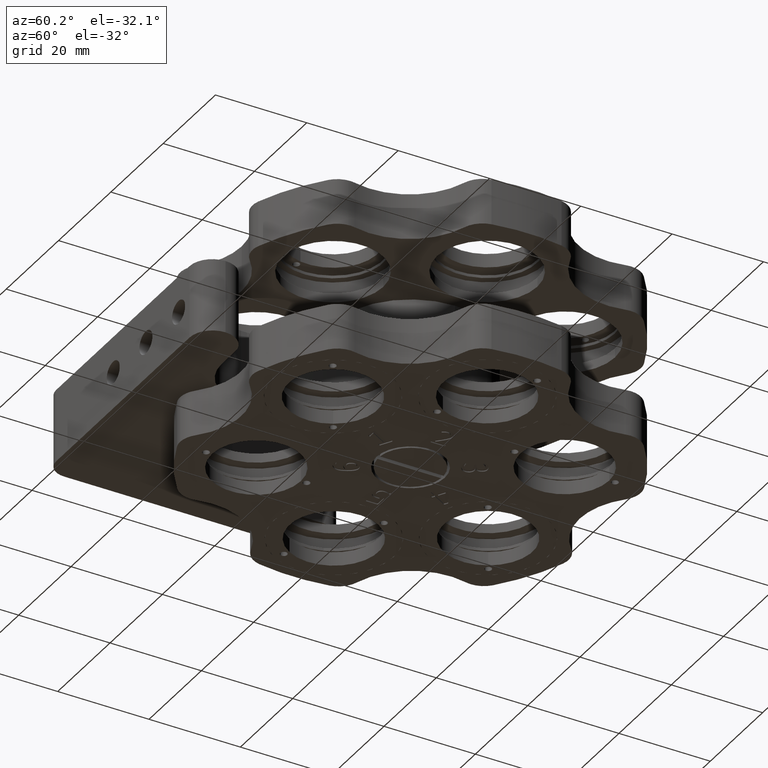
[diagram: clean part render]
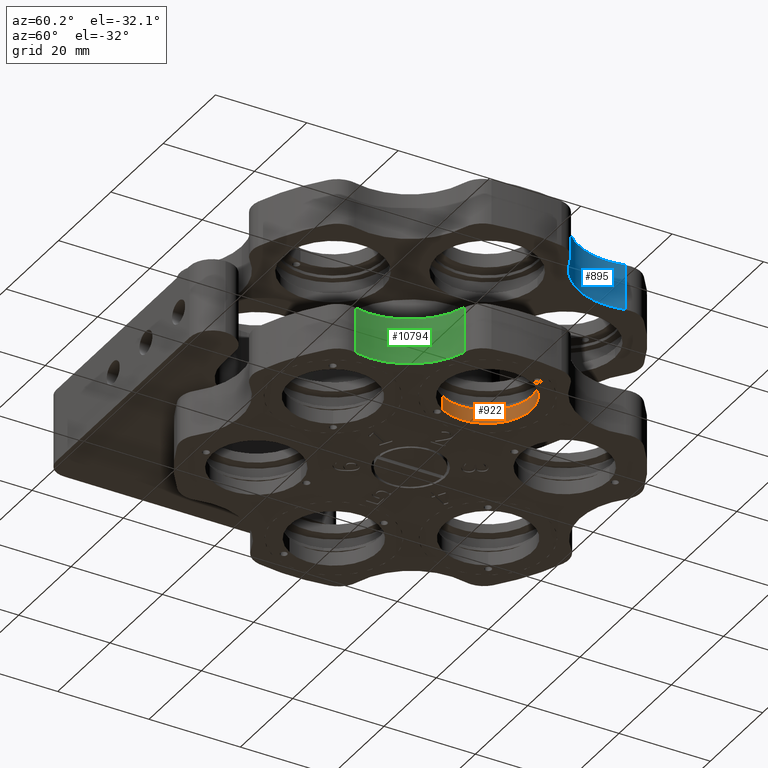
[diagram: same view with three faces highlighted in distinct colors, each labeled with its STEP entity id]
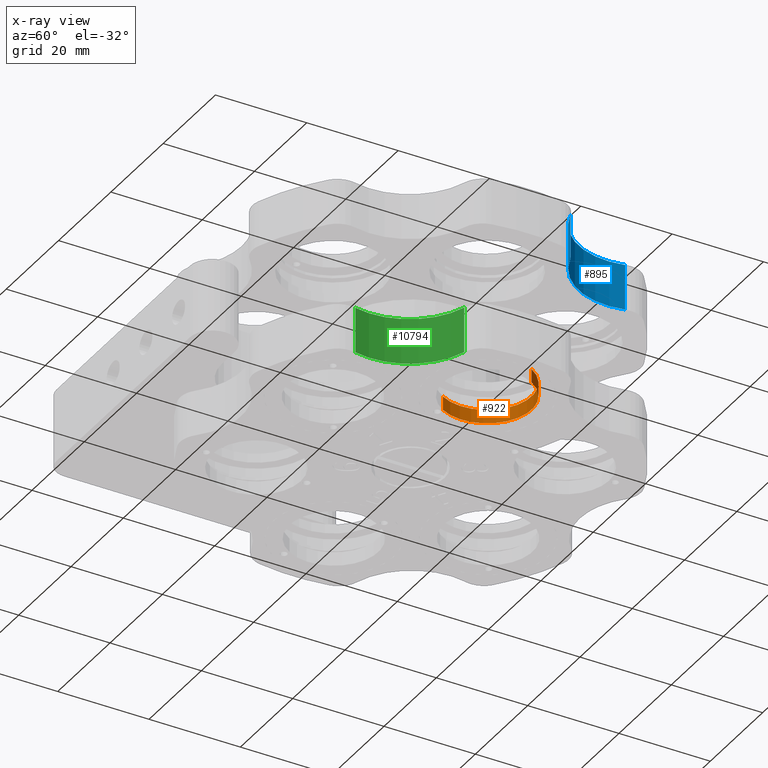
[diagram: x-ray of the same camera — body ghosted, the three highlighted faces saturated]
A machine part, auxiliary view with three faces highlighted in distinct colors.
The next image is the same camera in x-ray (body ghosted, the three faces saturated) — at least one of them is partly hidden behind the body in this view.
Their STEP definitions:

[orange] entity #922 — the highlighted cylindrical surface (partial cylindrical patch) has radius 9.75 mm, axis along (0, 0, 1).
#110 = DIRECTION ( 'NONE',  ( -1.060540212046022500E-016, -1.836909530733558700E-016, -1.000000000000000000 ) ) ;
#922 = ADVANCED_FACE ( 'NONE', ( #18519 ), #8671, .F. ) ;
#1078 = EDGE_CURVE ( 'NONE', #12391, #4183, #6092, .T. ) ;
#1122 = CARTESIAN_POINT ( 'NONE',  ( 20.86255197716672800, -4.875000000000829600, -24.00000000000000000 ) ) ;
#3502 = CIRCLE ( 'NONE', #6253, 9.750000000000000000 ) ;
#3625 = CARTESIAN_POINT ( 'NONE',  ( 20.86255197716672400, -4.875000000000830400, -27.00000000000000000 ) ) ;
#4074 = EDGE_LOOP ( 'NONE', ( #8932, #11191, #9882, #22594 ) ) ;
#4183 = VERTEX_POINT ( 'NONE', #1122 ) ;
#4471 = CARTESIAN_POINT ( 'NONE',  ( 29.30629966406505100, -9.070158632409203200E-013, -27.00000000000000400 ) ) ;
#6092 = LINE ( 'NONE', #3625, #20424 ) ;
#6253 = AXIS2_PLACEMENT_3D ( 'NONE', #4471, #110, #20593 ) ;
#7932 = CARTESIAN_POINT ( 'NONE',  ( 37.75004735096337100, 4.874999999999016800, -27.00000000000000700 ) ) ;
#8504 = DIRECTION ( 'NONE',  ( -0.8660254037844432600, -0.4999999999999921700, 3.558407130208835200E-016 ) ) ;
#8671 = CYLINDRICAL_SURFACE ( 'NONE', #13134, 9.750000000000000000 ) ;
#8675 = EDGE_CURVE ( 'NONE', #4183, #24024, #23476, .T. ) ;
#8932 = ORIENTED_EDGE ( 'NONE', *, *, #1078, .F. ) ;
#9718 = DIRECTION ( 'NONE',  ( 1.060540212046022500E-016, 1.836909530733558700E-016, 1.000000000000000000 ) ) ;
#9882 = ORIENTED_EDGE ( 'NONE', *, *, #26251, .T. ) ;
#10487 = DIRECTION ( 'NONE',  ( 1.060540212046022500E-016, 1.836909530733558700E-016, 1.000000000000000000 ) ) ;
#10593 = CARTESIAN_POINT ( 'NONE',  ( 20.86255197716672800, -4.875000000000829600, -27.00000000000000000 ) ) ;
#11191 = ORIENTED_EDGE ( 'NONE', *, *, #19227, .T. ) ;
#11472 = DIRECTION ( 'NONE',  ( 1.060540212046022500E-016, 1.836909530733558700E-016, 1.000000000000000000 ) ) ;
#11894 = LINE ( 'NONE', #7932, #25589 ) ;
#12180 = AXIS2_PLACEMENT_3D ( 'NONE', #12773, #20087, #8504 ) ;
#12391 = VERTEX_POINT ( 'NONE', #10593 ) ;
#12773 = CARTESIAN_POINT ( 'NONE',  ( 29.30629966406505100, -9.064647903817002500E-013, -24.00000000000000400 ) ) ;
#13134 = AXIS2_PLACEMENT_3D ( 'NONE', #17428, #11472, #23841 ) ;
#17428 = CARTESIAN_POINT ( 'NONE',  ( 29.30629966406505100, -9.070158632409203200E-013, -27.00000000000000400 ) ) ;
#18519 = FACE_OUTER_BOUND ( 'NONE', #4074, .T. ) ;
#19227 = EDGE_CURVE ( 'NONE', #12391, #24132, #3502, .T. ) ;
#20087 = DIRECTION ( 'NONE',  ( -1.060540212046022500E-016, -1.836909530733558700E-016, -1.000000000000000000 ) ) ;
#20396 = CARTESIAN_POINT ( 'NONE',  ( 37.75004735096337100, 4.874999999999018600, -24.00000000000000700 ) ) ;
#20424 = VECTOR ( 'NONE', #10487, 1000.000000000000000 ) ;
#20593 = DIRECTION ( 'NONE',  ( -0.8660254037844432600, -0.4999999999999921700, 3.558407130208835200E-016 ) ) ;
#20649 = CARTESIAN_POINT ( 'NONE',  ( 37.75004735096337100, 4.874999999999018600, -27.00000000000000700 ) ) ;
#22594 = ORIENTED_EDGE ( 'NONE', *, *, #8675, .F. ) ;
#23476 = CIRCLE ( 'NONE', #12180, 9.750000000000000000 ) ;
#23841 = DIRECTION ( 'NONE',  ( 0.8660254037844432600, 0.4999999999999921700, -3.558407130208835200E-016 ) ) ;
#24024 = VERTEX_POINT ( 'NONE', #20396 ) ;
#24132 = VERTEX_POINT ( 'NONE', #20649 ) ;
#25589 = VECTOR ( 'NONE', #9718, 1000.000000000000000 ) ;
#26251 = EDGE_CURVE ( 'NONE', #24132, #24024, #11894, .T. ) ;

[blue] entity #895 — the highlighted cylindrical surface (partial cylindrical patch) has radius 15 mm, axis along (0, 0, -1).
#812 = DIRECTION ( 'NONE',  ( 1.418662626296614000E-016, 2.885270652500998800E-016, -1.000000000000000000 ) ) ;
#895 = ADVANCED_FACE ( 'NONE', ( #7067 ), #13743, .F. ) ;
#1022 = VERTEX_POINT ( 'NONE', #7654 ) ;
#2443 = EDGE_CURVE ( 'NONE', #1022, #8354, #18466, .T. ) ;
#2568 = CIRCLE ( 'NONE', #3165, 15.00000000000003400 ) ;
#2719 = ORIENTED_EDGE ( 'NONE', *, *, #3470, .F. ) ;
#3165 = AXIS2_PLACEMENT_3D ( 'NONE', #19883, #19971, #21832 ) ;
#3470 = EDGE_CURVE ( 'NONE', #23243, #23102, #18120, .T. ) ;
#3859 = DIRECTION ( 'NONE',  ( 1.418662626296614000E-016, 2.885270652500998800E-016, -1.000000000000000000 ) ) ;
#5414 = ORIENTED_EDGE ( 'NONE', *, *, #2443, .T. ) ;
#6263 = CARTESIAN_POINT ( 'NONE',  ( 30.45951985098036700, 29.55025635164225400, 11.00000000000001100 ) ) ;
#7067 = FACE_OUTER_BOUND ( 'NONE', #23699, .T. ) ;
#7654 = CARTESIAN_POINT ( 'NONE',  ( 40.82103261435438000, 11.60358980220511100, 11.00000000000000900 ) ) ;
#7664 = VECTOR ( 'NONE', #11200, 1000.000000000000000 ) ;
#8354 = VERTEX_POINT ( 'NONE', #17484 ) ;
#9849 = AXIS2_PLACEMENT_3D ( 'NONE', #19997, #3859, #24164 ) ;
#11030 = CARTESIAN_POINT ( 'NONE',  ( 45.03332099679091300, 26.00000000000061500, 11.00000000000001200 ) ) ;
#11200 = DIRECTION ( 'NONE',  ( 1.418662626296614000E-016, 2.885270652500998800E-016, -1.000000000000000000 ) ) ;
#12700 = VECTOR ( 'NONE', #22375, 1000.000000000000000 ) ;
#13743 = CYLINDRICAL_SURFACE ( 'NONE', #16020, 15.00000000000003000 ) ;
#13791 = CARTESIAN_POINT ( 'NONE',  ( 30.45951985098036700, 29.55025635164225400, 11.00000000000001100 ) ) ;
#14867 = CARTESIAN_POINT ( 'NONE',  ( 30.45951985098036700, 29.55025635164225800, 1.000000000000012700 ) ) ;
#15703 = ORIENTED_EDGE ( 'NONE', *, *, #18071, .T. ) ;
#16020 = AXIS2_PLACEMENT_3D ( 'NONE', #11030, #812, #21363 ) ;
#17178 = CIRCLE ( 'NONE', #9849, 15.00000000000003000 ) ;
#17236 = CARTESIAN_POINT ( 'NONE',  ( 40.82103261435438000, 11.60358980220511100, 11.00000000000000900 ) ) ;
#17484 = CARTESIAN_POINT ( 'NONE',  ( 40.82103261435438000, 11.60358980220511400, 1.000000000000008900 ) ) ;
#18071 = EDGE_CURVE ( 'NONE', #8354, #23102, #2568, .T. ) ;
#18120 = LINE ( 'NONE', #6263, #12700 ) ;
#18466 = LINE ( 'NONE', #17236, #7664 ) ;
#19124 = EDGE_CURVE ( 'NONE', #1022, #23243, #17178, .T. ) ;
#19491 = ORIENTED_EDGE ( 'NONE', *, *, #19124, .F. ) ;
#19883 = CARTESIAN_POINT ( 'NONE',  ( 45.03332099679091300, 26.00000000000061800, 1.000000000000013800 ) ) ;
#19971 = DIRECTION ( 'NONE',  ( 1.418662626296614000E-016, 2.885270652500998800E-016, -1.000000000000000000 ) ) ;
#19997 = CARTESIAN_POINT ( 'NONE',  ( 45.03332099679091300, 26.00000000000061500, 11.00000000000001200 ) ) ;
#21363 = DIRECTION ( 'NONE',  ( 0.0000000000000000000, 1.000000000000000000, 2.312964634635738000E-016 ) ) ;
#21832 = DIRECTION ( 'NONE',  ( 0.0000000000000000000, 1.000000000000000000, 2.891205793294671900E-016 ) ) ;
#22375 = DIRECTION ( 'NONE',  ( 1.418662626296614000E-016, 2.885270652500998800E-016, -1.000000000000000000 ) ) ;
#23102 = VERTEX_POINT ( 'NONE', #14867 ) ;
#23243 = VERTEX_POINT ( 'NONE', #13791 ) ;
#23699 = EDGE_LOOP ( 'NONE', ( #15703, #2719, #19491, #5414 ) ) ;
#24164 = DIRECTION ( 'NONE',  ( 0.0000000000000000000, 1.000000000000000000, 2.312964634635738000E-016 ) ) ;

[green] entity #10794 — the highlighted cylindrical surface (partial cylindrical patch) has radius 15 mm, axis along (0, 0, 1).
#1865 = CARTESIAN_POINT ( 'NONE',  ( 45.03332099679091300, -26.00000000000003200, -16.99999999999999600 ) ) ;
#2671 = EDGE_CURVE ( 'NONE', #14563, #7914, #6382, .T. ) ;
#3942 = EDGE_CURVE ( 'NONE', #7914, #8924, #23201, .T. ) ;
#4201 = CARTESIAN_POINT ( 'NONE',  ( 40.82103261435438000, -11.60358980220453000, -17.00000000000000000 ) ) ;
#4848 = DIRECTION ( 'NONE',  ( 0.0000000000000000000, -1.000000000000000000, 2.312964634635737500E-016 ) ) ;
#4886 = CARTESIAN_POINT ( 'NONE',  ( 30.45951985098037400, -29.55025635164167500, -26.99999999999999600 ) ) ;
#5477 = ORIENTED_EDGE ( 'NONE', *, *, #3942, .F. ) ;
#5969 = DIRECTION ( 'NONE',  ( 4.201907058881570000E-017, 1.638974304573501000E-016, 1.000000000000000000 ) ) ;
#6382 = CIRCLE ( 'NONE', #20832, 15.00000000000003400 ) ;
#6846 = VECTOR ( 'NONE', #9804, 1000.000000000000000 ) ;
#7914 = VERTEX_POINT ( 'NONE', #4886 ) ;
#8924 = VERTEX_POINT ( 'NONE', #21903 ) ;
#9804 = DIRECTION ( 'NONE',  ( 4.201907058881570000E-017, 1.638974304573501000E-016, 1.000000000000000000 ) ) ;
#10172 = DIRECTION ( 'NONE',  ( 0.0000000000000000000, -1.000000000000000000, 2.312964634635738000E-016 ) ) ;
#10794 = ADVANCED_FACE ( 'NONE', ( #25631 ), #13192, .F. ) ;
#11014 = AXIS2_PLACEMENT_3D ( 'NONE', #16113, #14425, #24320 ) ;
#12581 = ORIENTED_EDGE ( 'NONE', *, *, #24963, .T. ) ;
#13192 = CYLINDRICAL_SURFACE ( 'NONE', #11014, 15.00000000000003400 ) ;
#14425 = DIRECTION ( 'NONE',  ( 4.201907058881570000E-017, 1.638974304573501000E-016, 1.000000000000000000 ) ) ;
#14563 = VERTEX_POINT ( 'NONE', #22670 ) ;
#14808 = DIRECTION ( 'NONE',  ( 4.201907058881570000E-017, 1.638974304573501000E-016, 1.000000000000000000 ) ) ;
#15791 = EDGE_LOOP ( 'NONE', ( #24273, #5477, #26302, #12581 ) ) ;
#16113 = CARTESIAN_POINT ( 'NONE',  ( 45.03332099679091300, -26.00000000000003600, -27.00000000000000000 ) ) ;
#16202 = DIRECTION ( 'NONE',  ( 4.201907058881570000E-017, 1.638974304573501000E-016, 1.000000000000000000 ) ) ;
#16925 = CARTESIAN_POINT ( 'NONE',  ( 45.03332099679091300, -26.00000000000003600, -27.00000000000000000 ) ) ;
#17284 = AXIS2_PLACEMENT_3D ( 'NONE', #1865, #16202, #10172 ) ;
#17897 = CARTESIAN_POINT ( 'NONE',  ( 40.82103261435438000, -11.60358980220453200, -27.00000000000000400 ) ) ;
#18260 = CIRCLE ( 'NONE', #17284, 15.00000000000003000 ) ;
#19248 = VERTEX_POINT ( 'NONE', #4201 ) ;
#20137 = CARTESIAN_POINT ( 'NONE',  ( 30.45951985098037400, -29.55025635164167500, -26.99999999999999600 ) ) ;
#20233 = LINE ( 'NONE', #17897, #6846 ) ;
#20832 = AXIS2_PLACEMENT_3D ( 'NONE', #16925, #14808, #4848 ) ;
#21903 = CARTESIAN_POINT ( 'NONE',  ( 30.45951985098037400, -29.55025635164167500, -16.99999999999999600 ) ) ;
#22670 = CARTESIAN_POINT ( 'NONE',  ( 40.82103261435438000, -11.60358980220453200, -27.00000000000000400 ) ) ;
#23201 = LINE ( 'NONE', #20137, #25433 ) ;
#24273 = ORIENTED_EDGE ( 'NONE', *, *, #25755, .T. ) ;
#24320 = DIRECTION ( 'NONE',  ( 0.0000000000000000000, -1.000000000000000000, 2.312964634635737500E-016 ) ) ;
#24963 = EDGE_CURVE ( 'NONE', #14563, #19248, #20233, .T. ) ;
#25433 = VECTOR ( 'NONE', #5969, 1000.000000000000000 ) ;
#25631 = FACE_OUTER_BOUND ( 'NONE', #15791, .T. ) ;
#25755 = EDGE_CURVE ( 'NONE', #19248, #8924, #18260, .T. ) ;
#26302 = ORIENTED_EDGE ( 'NONE', *, *, #2671, .F. ) ;